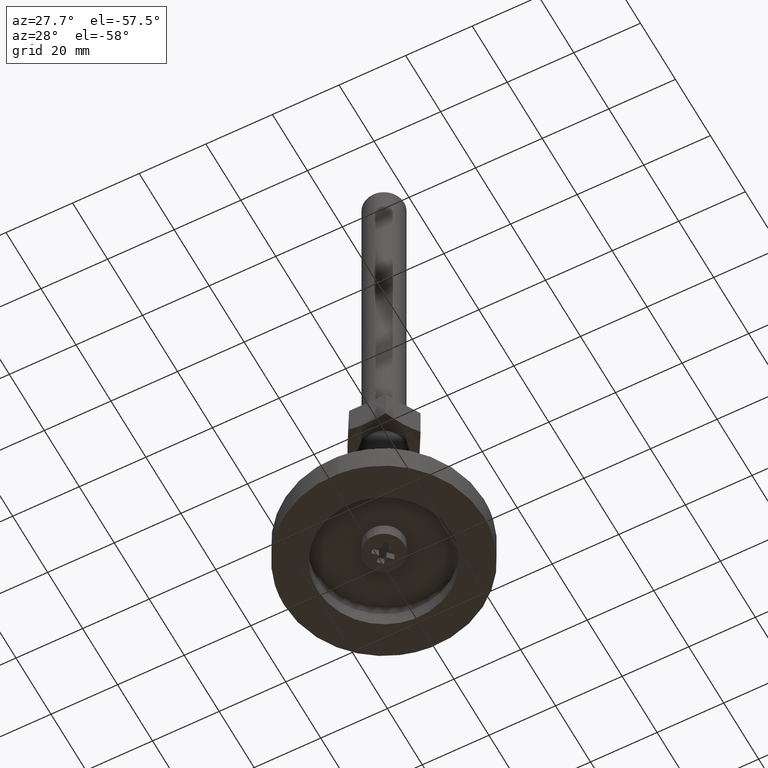
[diagram: clean part render]
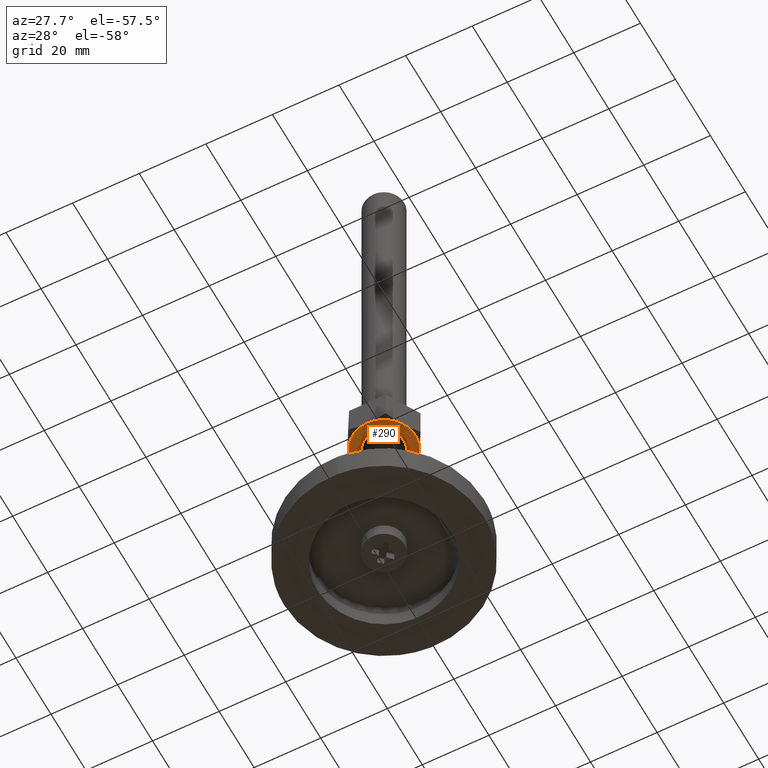
[diagram: same view with one face highlighted and labeled with its STEP entity id]
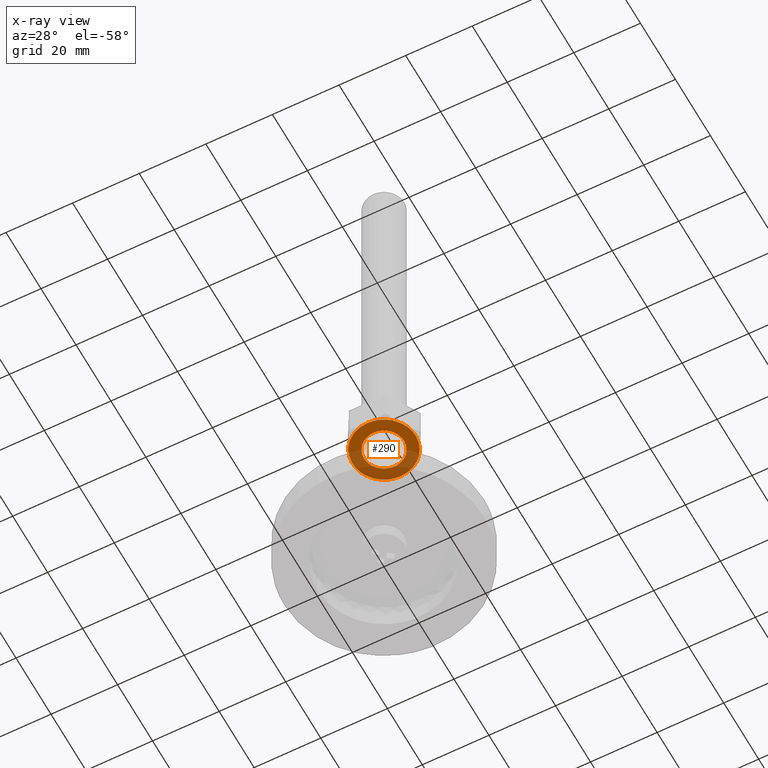
[diagram: x-ray of the same camera — body ghosted, the highlighted face saturated]
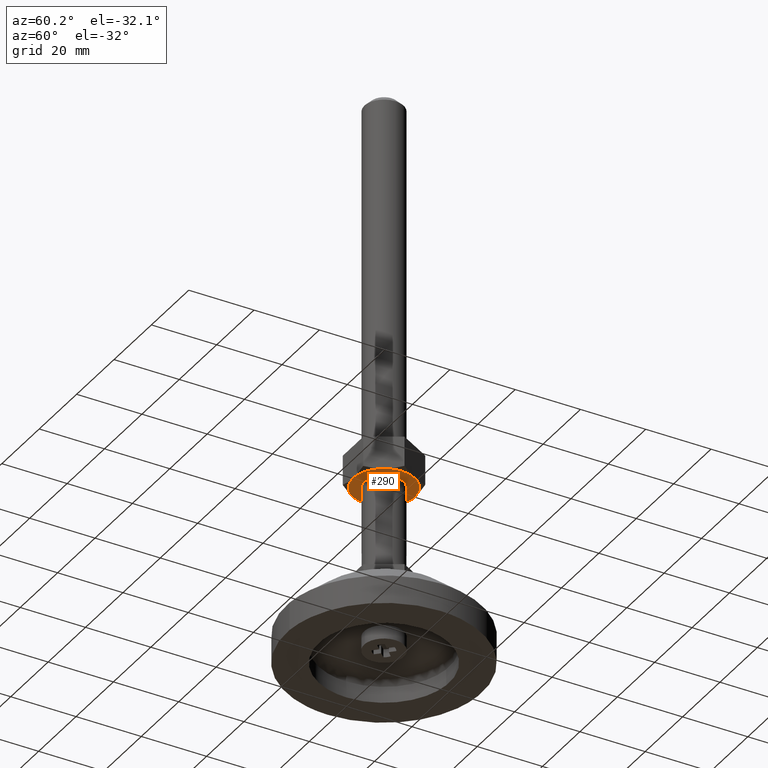
[diagram: same view with one face highlighted and labeled with its STEP entity id]
A machine part, auxiliary view. The second image highlights one B-rep face of the part: STEP entity #290.
The next image is the same camera in x-ray: the body ghosted, the highlighted face saturated — about 47% of this face is hidden behind the body in this view.
A second angle (auxiliary view) of the same face is appended — the face is thin or edge-on in the first view.
In plain terms, the highlighted face is a freeform B-spline surface patch.
Its self-contained STEP definition (entity closure, byte-faithful):
#40=CARTESIAN_POINT('',(-0.470754574491640,-5.981504002388963,55.0));
#41=VERTEX_POINT('',#40);
#47=CARTESIAN_POINT('',(-6.0,0.0,55.0));
#48=VERTEX_POINT('',#47);
#49=CARTESIAN_POINT('',(-6.0,0.0,55.0));
#50=CARTESIAN_POINT('',(-6.000000000000001,-5.546342949833377,55.0));
#51=CARTESIAN_POINT('',(-0.470754574491641,-5.981504002388963,55.0));
#59=(BOUNDED_CURVE()B_SPLINE_CURVE(2,(#49,#50,#51),.UNSPECIFIED.,.F.,.U.)B_SPLINE_CURVE_WITH_KNOTS((3,3),(0.0,0.236331300629197),.UNSPECIFIED.)CURVE()GEOMETRIC_REPRESENTATION_ITEM()RATIONAL_B_SPLINE_CURVE((1.0,0.723120658609379,0.969723356164365))REPRESENTATION_ITEM(''));
#60=EDGE_CURVE('',#48,#41,#59,.T.);
#62=CARTESIAN_POINT('',(0.470754574491639,5.981504002388963,55.0));
#63=VERTEX_POINT('',#62);
#64=CARTESIAN_POINT('',(0.470754574491640,5.981504002388966,55.000000000000007));
#65=CARTESIAN_POINT('',(0.235740642108592,6.0,55.0));
#66=CARTESIAN_POINT('',(0.0,6.0,55.0));
#67=CARTESIAN_POINT('',(-6.0,6.0,55.000000000000007));
#68=CARTESIAN_POINT('',(-6.0,0.0,55.0));
#76=(BOUNDED_CURVE()B_SPLINE_CURVE(2,(#64,#65,#66,#67,#68),.UNSPECIFIED.,.F.,.U.)B_SPLINE_CURVE_WITH_KNOTS((3,2,3),(0.736331300629197,0.750000000000000,1.0),.UNSPECIFIED.)CURVE()GEOMETRIC_REPRESENTATION_ITEM()RATIONAL_B_SPLINE_CURVE((0.969723356164365,0.983986122577168,1.0,0.707106781186548,1.0))REPRESENTATION_ITEM(''));
#77=EDGE_CURVE('',#63,#48,#76,.T.);
#153=CARTESIAN_POINT('',(6.0,0.0,55.0));
#154=VERTEX_POINT('',#153);
#155=CARTESIAN_POINT('',(6.0,0.0,55.0));
#156=CARTESIAN_POINT('',(6.0,5.546342949833378,55.0));
#157=CARTESIAN_POINT('',(0.470754574491640,5.981504002388966,55.000000000000007));
#165=(BOUNDED_CURVE()B_SPLINE_CURVE(2,(#155,#156,#157),.UNSPECIFIED.,.F.,.U.)B_SPLINE_CURVE_WITH_KNOTS((3,3),(0.500000000000000,0.736331300629197),.UNSPECIFIED.)CURVE()GEOMETRIC_REPRESENTATION_ITEM()RATIONAL_B_SPLINE_CURVE((1.0,0.723120658609379,0.969723356164365))REPRESENTATION_ITEM(''));
#166=EDGE_CURVE('',#154,#63,#165,.T.);
#168=CARTESIAN_POINT('',(-0.470754574491640,-5.981504002388966,55.000000000000007));
#169=CARTESIAN_POINT('',(-0.235740642108592,-6.0,55.0));
#170=CARTESIAN_POINT('',(0.0,-6.0,55.0));
#171=CARTESIAN_POINT('',(6.0,-6.0,55.000000000000007));
#172=CARTESIAN_POINT('',(6.0,0.0,55.0));
#180=(BOUNDED_CURVE()B_SPLINE_CURVE(2,(#168,#169,#170,#171,#172),.UNSPECIFIED.,.F.,.U.)B_SPLINE_CURVE_WITH_KNOTS((3,2,3),(0.236331300629197,0.250000000000000,0.500000000000000),.UNSPECIFIED.)CURVE()GEOMETRIC_REPRESENTATION_ITEM()RATIONAL_B_SPLINE_CURVE((0.969723356164365,0.983986122577168,1.0,0.707106781186548,1.0))REPRESENTATION_ITEM(''));
#181=EDGE_CURVE('',#41,#154,#180,.T.);
#187=CARTESIAN_POINT('',(-10.449050032500880,10.449049963174421,55.0));
#188=CARTESIAN_POINT('',(10.449050642601501,10.449049963174421,55.0));
#189=CARTESIAN_POINT('',(-10.449050032500880,-10.449050472793910,55.0));
#190=CARTESIAN_POINT('',(10.449050642601501,-10.449050472793910,55.0));
#191=B_SPLINE_SURFACE_WITH_KNOTS('',1,1,((#187,#189),(#188,#190)),.UNSPECIFIED.,.F.,.F.,.U.,(2,2),(2,2),(0.0,20.898100675102381),(0.0,20.898100435968342),.UNSPECIFIED.);
#192=CARTESIAN_POINT('',(-8.227240917976038,-4.750000142069610,55.0));
#193=VERTEX_POINT('',#192);
#194=CARTESIAN_POINT('',(-8.227240917976140,4.750000142069551,55.0));
#195=VERTEX_POINT('',#194);
#196=CARTESIAN_POINT('',(-8.227240917976038,-4.750000142069610,55.0));
#197=CARTESIAN_POINT('',(-10.969655525378233,-5.984796E-014,55.0));
#198=CARTESIAN_POINT('',(-8.227241312009765,4.750000369564988,55.0));
#206=(BOUNDED_CURVE()B_SPLINE_CURVE(2,(#196,#197,#198),.UNSPECIFIED.,.F.,.U.)CURVE()GEOMETRIC_REPRESENTATION_ITEM()QUASI_UNIFORM_CURVE()RATIONAL_B_SPLINE_CURVE((1.0,0.866025386309495,1.0))REPRESENTATION_ITEM(''));
#207=EDGE_CURVE('',#193,#195,#206,.T.);
#208=ORIENTED_EDGE('',*,*,#207,.T.);
#209=CARTESIAN_POINT('',(0.0,9.500000000000108,55.0));
#210=VERTEX_POINT('',#209);
#211=CARTESIAN_POINT('',(-8.227240917976140,4.750000142069551,55.0));
#212=CARTESIAN_POINT('',(-5.484827430665226,9.500000164047771,55.000000000000021));
#213=CARTESIAN_POINT('',(0.0,9.500000164047771,55.0));
#221=(BOUNDED_CURVE()B_SPLINE_CURVE(2,(#211,#212,#213),.UNSPECIFIED.,.F.,.U.)CURVE()GEOMETRIC_REPRESENTATION_ITEM()QUASI_UNIFORM_CURVE()RATIONAL_B_SPLINE_CURVE((1.0,0.866025412521909,1.0))REPRESENTATION_ITEM(''));
#222=EDGE_CURVE('',#195,#210,#221,.T.);
#223=ORIENTED_EDGE('',*,*,#222,.T.);
#224=CARTESIAN_POINT('',(8.227241667976109,4.749999709056841,55.0));
#225=VERTEX_POINT('',#224);
#226=CARTESIAN_POINT('',(0.0,9.500000000000108,55.0));
#227=CARTESIAN_POINT('',(5.484827930665233,9.500000164047773,55.0));
#228=CARTESIAN_POINT('',(8.227241687009766,4.749999720045927,55.0));
#236=(BOUNDED_CURVE()B_SPLINE_CURVE(2,(#226,#227,#228),.UNSPECIFIED.,.F.,.U.)CURVE()GEOMETRIC_REPRESENTATION_ITEM()QUASI_UNIFORM_CURVE()RATIONAL_B_SPLINE_CURVE((1.0,0.866025392785067,1.0))REPRESENTATION_ITEM(''));
#237=EDGE_CURVE('',#210,#225,#236,.T.);
#238=ORIENTED_EDGE('',*,*,#237,.T.);
#239=CARTESIAN_POINT('',(8.227241667976021,-4.749999709056900,55.0));
#240=VERTEX_POINT('',#239);
#241=CARTESIAN_POINT('',(8.227241667976109,4.749999709056841,55.0));
#242=CARTESIAN_POINT('',(10.969655025378229,-5.377643E-014,55.0));
#243=CARTESIAN_POINT('',(8.227241687009718,-4.749999720046009,55.0));
#251=(BOUNDED_CURVE()B_SPLINE_CURVE(2,(#241,#242,#243),.UNSPECIFIED.,.F.,.U.)CURVE()GEOMETRIC_REPRESENTATION_ITEM()QUASI_UNIFORM_CURVE()RATIONAL_B_SPLINE_CURVE((1.0,0.866025425783179,1.0))REPRESENTATION_ITEM(''));
#252=EDGE_CURVE('',#225,#240,#251,.T.);
#253=ORIENTED_EDGE('',*,*,#252,.T.);
#254=CARTESIAN_POINT('',(0.0,-9.499999999999890,55.0));
#255=VERTEX_POINT('',#254);
#256=CARTESIAN_POINT('',(8.227241667976021,-4.749999709056900,55.0));
#257=CARTESIAN_POINT('',(5.484827930665168,-9.500000164047769,55.0));
#258=CARTESIAN_POINT('',(0.0,-9.500000164047771,55.0));
#266=(BOUNDED_CURVE()B_SPLINE_CURVE(2,(#256,#257,#258),.UNSPECIFIED.,.F.,.U.)CURVE()GEOMETRIC_REPRESENTATION_ITEM()QUASI_UNIFORM_CURVE()RATIONAL_B_SPLINE_CURVE((1.0,0.866025392785069,1.0))REPRESENTATION_ITEM(''));
#267=EDGE_CURVE('',#240,#255,#266,.T.);
#268=ORIENTED_EDGE('',*,*,#267,.T.);
#269=CARTESIAN_POINT('',(0.0,-9.499999999999890,55.0));
#270=CARTESIAN_POINT('',(-5.484827430665154,-9.500000164047771,55.0));
#271=CARTESIAN_POINT('',(-8.227241312009712,-4.750000369565080,55.0));
#279=(BOUNDED_CURVE()B_SPLINE_CURVE(2,(#269,#270,#271),.UNSPECIFIED.,.F.,.U.)CURVE()GEOMETRIC_REPRESENTATION_ITEM()QUASI_UNIFORM_CURVE()RATIONAL_B_SPLINE_CURVE((1.0,0.866025412521911,1.0))REPRESENTATION_ITEM(''));
#280=EDGE_CURVE('',#255,#193,#279,.T.);
#281=ORIENTED_EDGE('',*,*,#280,.T.);
#282=EDGE_LOOP('',(#208,#223,#238,#253,#268,#281));
#283=FACE_OUTER_BOUND('',#282,.T.);
#284=ORIENTED_EDGE('',*,*,#166,.T.);
#285=ORIENTED_EDGE('',*,*,#77,.T.);
#286=ORIENTED_EDGE('',*,*,#60,.T.);
#287=ORIENTED_EDGE('',*,*,#181,.T.);
#288=EDGE_LOOP('',(#284,#285,#286,#287));
#289=FACE_BOUND('',#288,.T.);
#290=ADVANCED_FACE('',(#283,#289),#191,.T.);